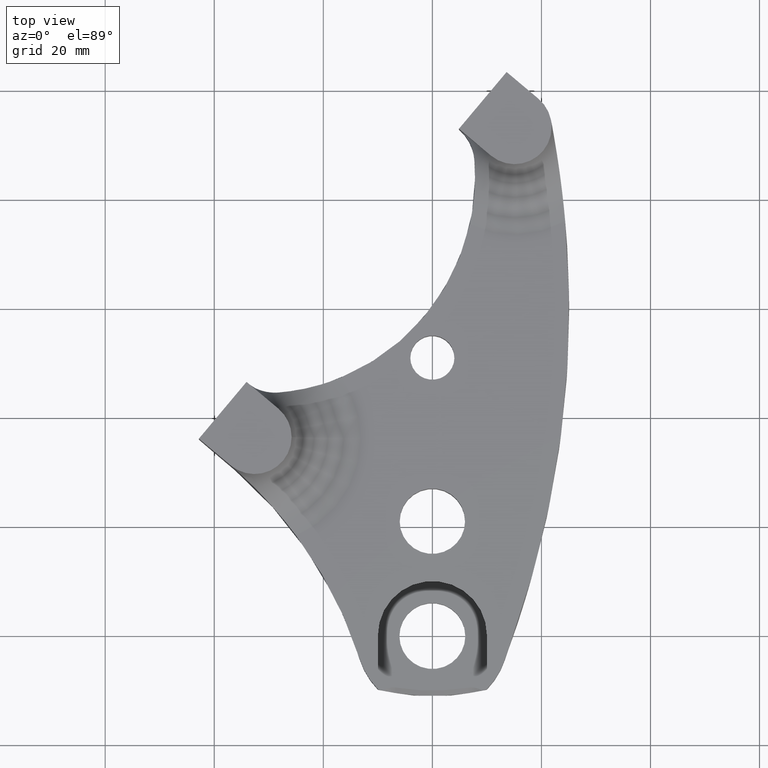
[diagram: clean part render]
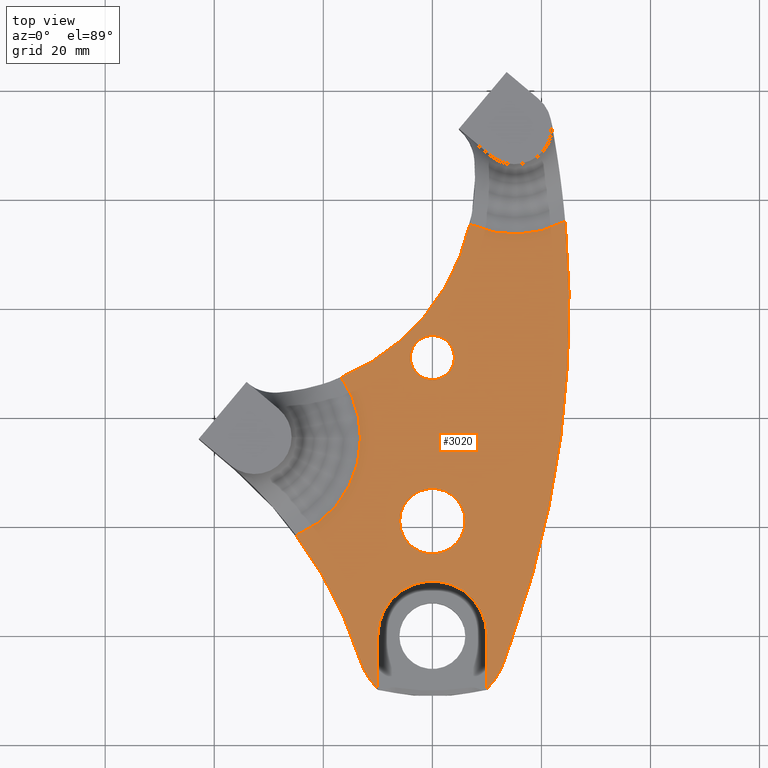
[diagram: same view with one face highlighted and labeled with its STEP entity id]
A machine part, top view. The second image highlights one B-rep face of the part: STEP entity #3020.
In plain terms, the highlighted planar face has unit normal (0, 0, 1).
Its self-contained STEP definition (entity closure, byte-faithful):
#32 = EDGE_CURVE ( 'NONE', #1380, #1868, #1987, .T. ) ;
#50 = ORIENTED_EDGE ( 'NONE', *, *, #32, .F. ) ;
#161 = DIRECTION ( 'NONE',  ( 0.0000000000000000000, 0.0000000000000000000, 1.000000000000000000 ) ) ;
#186 = AXIS2_PLACEMENT_3D ( 'NONE', #2246, #1760, #736 ) ;
#227 = CARTESIAN_POINT ( 'NONE',  ( -32.61366996791600300, 36.24288800887497100, 3.499999999999999600 ) ) ;
#270 = CARTESIAN_POINT ( 'NONE',  ( 85.99622595364832000, -27.37596486898382900, 3.500000000000003100 ) ) ;
#296 = EDGE_CURVE ( 'NONE', #1664, #1058, #2597, .T. ) ;
#345 = CARTESIAN_POINT ( 'NONE',  ( -154.9177525093064400, 59.93815801378288200, 3.500000000000003100 ) ) ;
#387 = CARTESIAN_POINT ( 'NONE',  ( 14.31060865489092200, -1.395044883831797500, 3.500000000000003100 ) ) ;
#485 = CARTESIAN_POINT ( 'NONE',  ( -13.18038061003299400, 36.24288800887497100, 3.499999999999999600 ) ) ;
#500 = EDGE_CURVE ( 'NONE', #3460, #3095, #1283, .T. ) ;
#512 = DIRECTION ( 'NONE',  ( 1.000000000000000000, 0.0000000000000000000, 0.0000000000000000000 ) ) ;
#524 = ORIENTED_EDGE ( 'NONE', *, *, #1690, .F. ) ;
#677 = VERTEX_POINT ( 'NONE', #757 ) ;
#690 = VERTEX_POINT ( 'NONE', #1849 ) ;
#720 = FACE_OUTER_BOUND ( 'NONE', #3322, .T. ) ;
#732 = DIRECTION ( 'NONE',  ( 0.0000000000000000000, 0.0000000000000000000, 1.000000000000000000 ) ) ;
#736 = DIRECTION ( 'NONE',  ( 1.000000000000000000, 0.0000000000000000000, 0.0000000000000000000 ) ) ;
#744 = CARTESIAN_POINT ( 'NONE',  ( -10.00000000000000000, 1.224646799147353300E-015, 3.499999999999999600 ) ) ;
#749 = AXIS2_PLACEMENT_3D ( 'NONE', #3533, #732, #2292 ) ;
#757 = CARTESIAN_POINT ( 'NONE',  ( -6.000000000000000900, 20.99999999999998200, 3.499999999999999600 ) ) ;
#779 = CARTESIAN_POINT ( 'NONE',  ( 6.870736157201482900, 75.46971201230074700, 3.500000000000003100 ) ) ;
#812 = DIRECTION ( 'NONE',  ( 1.000000000000000000, 0.0000000000000000000, 0.0000000000000000000 ) ) ;
#843 = VERTEX_POINT ( 'NONE', #485 ) ;
#856 = AXIS2_PLACEMENT_3D ( 'NONE', #1415, #3311, #1688 ) ;
#861 = LINE ( 'NONE', #744, #3090 ) ;
#873 = EDGE_LOOP ( 'NONE', ( #2865, #50 ) ) ;
#886 = CARTESIAN_POINT ( 'NONE',  ( -16.69331456390601800, 47.38716990934836600, 3.500000000000003100 ) ) ;
#926 = ORIENTED_EDGE ( 'NONE', *, *, #1031, .T. ) ;
#937 = DIRECTION ( 'NONE',  ( -0.0000000000000000000, -0.0000000000000000000, -1.000000000000000000 ) ) ;
#944 = CARTESIAN_POINT ( 'NONE',  ( 0.0000000000000000000, 0.0000000000000000000, 3.499999999999999600 ) ) ;
#996 = CARTESIAN_POINT ( 'NONE',  ( -10.00000000000000000, 1.224646799147353300E-015, 3.499999999999999600 ) ) ;
#1027 = AXIS2_PLACEMENT_3D ( 'NONE', #270, #161, #3377 ) ;
#1031 = EDGE_CURVE ( 'NONE', #677, #2344, #2585, .T. ) ;
#1039 = DIRECTION ( 'NONE',  ( 1.000000000000000000, 0.0000000000000000000, 0.0000000000000000000 ) ) ;
#1057 = CARTESIAN_POINT ( 'NONE',  ( 0.0000000000000000000, 20.99999999999998200, 3.499999999999999600 ) ) ;
#1058 = VERTEX_POINT ( 'NONE', #779 ) ;
#1075 = CARTESIAN_POINT ( 'NONE',  ( -32.61366996791600300, 36.24288800887497100, 3.499999999999999600 ) ) ;
#1078 = DIRECTION ( 'NONE',  ( -0.0000000000000000000, -0.0000000000000000000, -1.000000000000000000 ) ) ;
#1082 = CARTESIAN_POINT ( 'NONE',  ( -6.776263578034402700E-018, 50.99999999999998600, 3.500000000000003100 ) ) ;
#1098 = AXIS2_PLACEMENT_3D ( 'NONE', #3058, #3502, #3361 ) ;
#1135 = ORIENTED_EDGE ( 'NONE', *, *, #1375, .T. ) ;
#1141 = CARTESIAN_POINT ( 'NONE',  ( -10.00000000000001200, -9.797958971132700900, 3.500000000000003100 ) ) ;
#1146 = VERTEX_POINT ( 'NONE', #2073 ) ;
#1157 = CIRCLE ( 'NONE', #1027, 76.24851428571432200 ) ;
#1173 = ORIENTED_EDGE ( 'NONE', *, *, #3101, .T. ) ;
#1176 = VERTEX_POINT ( 'NONE', #1754 ) ;
#1178 = ORIENTED_EDGE ( 'NONE', *, *, #500, .F. ) ;
#1192 = EDGE_CURVE ( 'NONE', #1868, #1380, #2460, .T. ) ;
#1271 = CARTESIAN_POINT ( 'NONE',  ( 24.36328604258492100, 76.01015900168843600, 3.499999999999999600 ) ) ;
#1276 = AXIS2_PLACEMENT_3D ( 'NONE', #2690, #2157, #2419 ) ;
#1283 = CIRCLE ( 'NONE', #2876, 13.99999999999998400 ) ;
#1312 = CIRCLE ( 'NONE', #2975, 19.43328935788300900 ) ;
#1320 = CIRCLE ( 'NONE', #3251, 13.99999999999999500 ) ;
#1335 = VERTEX_POINT ( 'NONE', #996 ) ;
#1372 = EDGE_CURVE ( 'NONE', #3332, #1335, #861, .T. ) ;
#1375 = EDGE_CURVE ( 'NONE', #2344, #677, #2173, .T. ) ;
#1380 = VERTEX_POINT ( 'NONE', #2823 ) ;
#1414 = DIRECTION ( 'NONE',  ( 1.770494733737654200E-015, 1.000000000000000000, -0.0000000000000000000 ) ) ;
#1415 = CARTESIAN_POINT ( 'NONE',  ( -31.99045217961218100, 84.15055662679343100, 3.500000000000003100 ) ) ;
#1443 = CIRCLE ( 'NONE', #1944, 10.00000000000000000 ) ;
#1447 = EDGE_CURVE ( 'NONE', #1664, #2031, #3184, .T. ) ;
#1492 = EDGE_CURVE ( 'NONE', #2734, #843, #2166, .T. ) ;
#1509 = ORIENTED_EDGE ( 'NONE', *, *, #1372, .T. ) ;
#1572 = CARTESIAN_POINT ( 'NONE',  ( 0.0000000000000000000, 1.232595164407830900E-029, 3.500000000000003100 ) ) ;
#1592 = CIRCLE ( 'NONE', #749, 76.24851428571430700 ) ;
#1615 = EDGE_CURVE ( 'NONE', #3332, #690, #1320, .T. ) ;
#1638 = DIRECTION ( 'NONE',  ( -0.0000000000000000000, -0.0000000000000000000, -1.000000000000000000 ) ) ;
#1664 = VERTEX_POINT ( 'NONE', #1271 ) ;
#1688 = DIRECTION ( 'NONE',  ( 1.000000000000000000, 0.0000000000000000000, 0.0000000000000000000 ) ) ;
#1690 = EDGE_CURVE ( 'NONE', #2031, #3460, #1157, .T. ) ;
#1735 = CARTESIAN_POINT ( 'NONE',  ( -4.049999999999998900, 50.99999999999998600, 3.500000000000003100 ) ) ;
#1754 = CARTESIAN_POINT ( 'NONE',  ( 10.00000000000000000, 0.0000000000000000000, 3.499999999999999600 ) ) ;
#1755 = AXIS2_PLACEMENT_3D ( 'NONE', #1082, #2390, #3549 ) ;
#1760 = DIRECTION ( 'NONE',  ( -0.0000000000000000000, -0.0000000000000000000, -1.000000000000000000 ) ) ;
#1761 = ORIENTED_EDGE ( 'NONE', *, *, #2490, .T. ) ;
#1805 = EDGE_CURVE ( 'NONE', #843, #1146, #1312, .T. ) ;
#1819 = DIRECTION ( 'NONE',  ( -3.363939994101538300E-015, -1.000000000000000000, 0.0000000000000000000 ) ) ;
#1842 = CARTESIAN_POINT ( 'NONE',  ( 6.000000000000000900, 20.99999999999998200, 3.499999999999999600 ) ) ;
#1849 = CARTESIAN_POINT ( 'NONE',  ( -13.34035438566384700, -4.246756982086301600, 3.500000000000003100 ) ) ;
#1852 = CARTESIAN_POINT ( 'NONE',  ( -6.776263578034402700E-018, 50.99999999999998600, 3.500000000000003100 ) ) ;
#1864 = ORIENTED_EDGE ( 'NONE', *, *, #1492, .T. ) ;
#1868 = VERTEX_POINT ( 'NONE', #1735 ) ;
#1870 = VECTOR ( 'NONE', #1819, 1000.000000000000000 ) ;
#1944 = AXIS2_PLACEMENT_3D ( 'NONE', #944, #2792, #3346 ) ;
#1968 = AXIS2_PLACEMENT_3D ( 'NONE', #345, #937, #3197 ) ;
#1987 = CIRCLE ( 'NONE', #1755, 4.049999999999998900 ) ;
#2029 = FACE_BOUND ( 'NONE', #2065, .T. ) ;
#2031 = VERTEX_POINT ( 'NONE', #387 ) ;
#2065 = EDGE_LOOP ( 'NONE', ( #1135, #926 ) ) ;
#2073 = CARTESIAN_POINT ( 'NONE',  ( -24.99236519057205900, 18.36641048230266500, 3.500000000000000000 ) ) ;
#2141 = ORIENTED_EDGE ( 'NONE', *, *, #3397, .T. ) ;
#2157 = DIRECTION ( 'NONE',  ( 0.0000000000000000000, 0.0000000000000000000, 1.000000000000000000 ) ) ;
#2166 = CIRCLE ( 'NONE', #2306, 19.43328935788300900 ) ;
#2173 = CIRCLE ( 'NONE', #1098, 6.000000000000000900 ) ;
#2201 = DIRECTION ( 'NONE',  ( 1.000000000000000000, 0.0000000000000000000, 0.0000000000000000000 ) ) ;
#2246 = CARTESIAN_POINT ( 'NONE',  ( 15.08117067082488000, 93.08338568830346600, 3.499999999999999600 ) ) ;
#2292 = DIRECTION ( 'NONE',  ( 1.000000000000000000, 0.0000000000000000000, 0.0000000000000000000 ) ) ;
#2306 = AXIS2_PLACEMENT_3D ( 'NONE', #1075, #2547, #2610 ) ;
#2341 = DIRECTION ( 'NONE',  ( -0.0000000000000000000, -0.0000000000000000000, -1.000000000000000000 ) ) ;
#2344 = VERTEX_POINT ( 'NONE', #1842 ) ;
#2370 = AXIS2_PLACEMENT_3D ( 'NONE', #1852, #3216, #2921 ) ;
#2390 = DIRECTION ( 'NONE',  ( 0.0000000000000000000, 0.0000000000000000000, 1.000000000000000000 ) ) ;
#2419 = DIRECTION ( 'NONE',  ( 1.000000000000000000, 0.0000000000000000000, -0.0000000000000000000 ) ) ;
#2450 = DIRECTION ( 'NONE',  ( -0.0000000000000000000, -0.0000000000000000000, -1.000000000000000000 ) ) ;
#2458 = CARTESIAN_POINT ( 'NONE',  ( 13.34035438566383300, -4.246756982086326500, 3.500000000000003100 ) ) ;
#2460 = CIRCLE ( 'NONE', #2370, 4.049999999999998900 ) ;
#2475 = LINE ( 'NONE', #3475, #1870 ) ;
#2480 = ORIENTED_EDGE ( 'NONE', *, *, #1805, .T. ) ;
#2490 = EDGE_CURVE ( 'NONE', #1335, #1176, #1443, .T. ) ;
#2547 = DIRECTION ( 'NONE',  ( -0.0000000000000000000, -0.0000000000000000000, -1.000000000000000000 ) ) ;
#2585 = CIRCLE ( 'NONE', #3394, 6.000000000000000900 ) ;
#2597 = CIRCLE ( 'NONE', #186, 19.43328935788300900 ) ;
#2610 = DIRECTION ( 'NONE',  ( 1.000000000000000000, 1.785311219351680200E-015, 0.0000000000000000000 ) ) ;
#2690 = CARTESIAN_POINT ( 'NONE',  ( 0.0000000000000000000, 0.0000000000000000000, 3.500000000000000000 ) ) ;
#2734 = VERTEX_POINT ( 'NONE', #886 ) ;
#2771 = CIRCLE ( 'NONE', #856, 39.81895305216184500 ) ;
#2792 = DIRECTION ( 'NONE',  ( -0.0000000000000000000, -0.0000000000000000000, -1.000000000000000000 ) ) ;
#2815 = FACE_BOUND ( 'NONE', #873, .T. ) ;
#2823 = CARTESIAN_POINT ( 'NONE',  ( 4.049999999999998900, 50.99999999999998600, 3.500000000000003100 ) ) ;
#2860 = CARTESIAN_POINT ( 'NONE',  ( 9.999999999999968000, -9.797958971132725700, 3.500000000000003100 ) ) ;
#2865 = ORIENTED_EDGE ( 'NONE', *, *, #1192, .F. ) ;
#2876 = AXIS2_PLACEMENT_3D ( 'NONE', #3259, #1638, #812 ) ;
#2921 = DIRECTION ( 'NONE',  ( 1.000000000000000000, 0.0000000000000000000, 0.0000000000000000000 ) ) ;
#2948 = EDGE_CURVE ( 'NONE', #690, #1146, #1592, .T. ) ;
#2975 = AXIS2_PLACEMENT_3D ( 'NONE', #227, #2450, #2201 ) ;
#3020 = ADVANCED_FACE ( 'NONE', ( #2029, #2815, #720 ), #3288, .T. ) ;
#3058 = CARTESIAN_POINT ( 'NONE',  ( 0.0000000000000000000, 20.99999999999998200, 3.499999999999999600 ) ) ;
#3090 = VECTOR ( 'NONE', #1414, 1000.000000000000000 ) ;
#3095 = VERTEX_POINT ( 'NONE', #2860 ) ;
#3101 = EDGE_CURVE ( 'NONE', #1176, #3095, #2475, .T. ) ;
#3184 = CIRCLE ( 'NONE', #1968, 180.0000000000000000 ) ;
#3197 = DIRECTION ( 'NONE',  ( 1.000000000000000000, 0.0000000000000000000, 0.0000000000000000000 ) ) ;
#3216 = DIRECTION ( 'NONE',  ( 0.0000000000000000000, 0.0000000000000000000, 1.000000000000000000 ) ) ;
#3251 = AXIS2_PLACEMENT_3D ( 'NONE', #1572, #1078, #1039 ) ;
#3259 = CARTESIAN_POINT ( 'NONE',  ( 0.0000000000000000000, 1.232595164407830900E-029, 3.500000000000003100 ) ) ;
#3288 = PLANE ( 'NONE',  #1276 ) ;
#3311 = DIRECTION ( 'NONE',  ( -0.0000000000000000000, -0.0000000000000000000, -1.000000000000000000 ) ) ;
#3322 = EDGE_LOOP ( 'NONE', ( #3514, #3470, #2141, #1864, #2480, #3422, #3380, #1509, #1761, #1173, #1178, #524 ) ) ;
#3332 = VERTEX_POINT ( 'NONE', #1141 ) ;
#3346 = DIRECTION ( 'NONE',  ( 1.000000000000000000, 0.0000000000000000000, 0.0000000000000000000 ) ) ;
#3361 = DIRECTION ( 'NONE',  ( 1.000000000000000000, 0.0000000000000000000, 0.0000000000000000000 ) ) ;
#3377 = DIRECTION ( 'NONE',  ( 1.000000000000000000, 0.0000000000000000000, 0.0000000000000000000 ) ) ;
#3380 = ORIENTED_EDGE ( 'NONE', *, *, #1615, .F. ) ;
#3394 = AXIS2_PLACEMENT_3D ( 'NONE', #1057, #2341, #512 ) ;
#3397 = EDGE_CURVE ( 'NONE', #1058, #2734, #2771, .T. ) ;
#3422 = ORIENTED_EDGE ( 'NONE', *, *, #2948, .F. ) ;
#3460 = VERTEX_POINT ( 'NONE', #2458 ) ;
#3470 = ORIENTED_EDGE ( 'NONE', *, *, #296, .T. ) ;
#3475 = CARTESIAN_POINT ( 'NONE',  ( 9.999999999999968000, -9.797958971132725700, 3.499999999999999600 ) ) ;
#3502 = DIRECTION ( 'NONE',  ( -0.0000000000000000000, -0.0000000000000000000, -1.000000000000000000 ) ) ;
#3514 = ORIENTED_EDGE ( 'NONE', *, *, #1447, .F. ) ;
#3533 = CARTESIAN_POINT ( 'NONE',  ( -85.99622595364832000, -27.37596486898382900, 3.500000000000003100 ) ) ;
#3549 = DIRECTION ( 'NONE',  ( 1.000000000000000000, 0.0000000000000000000, 0.0000000000000000000 ) ) ;